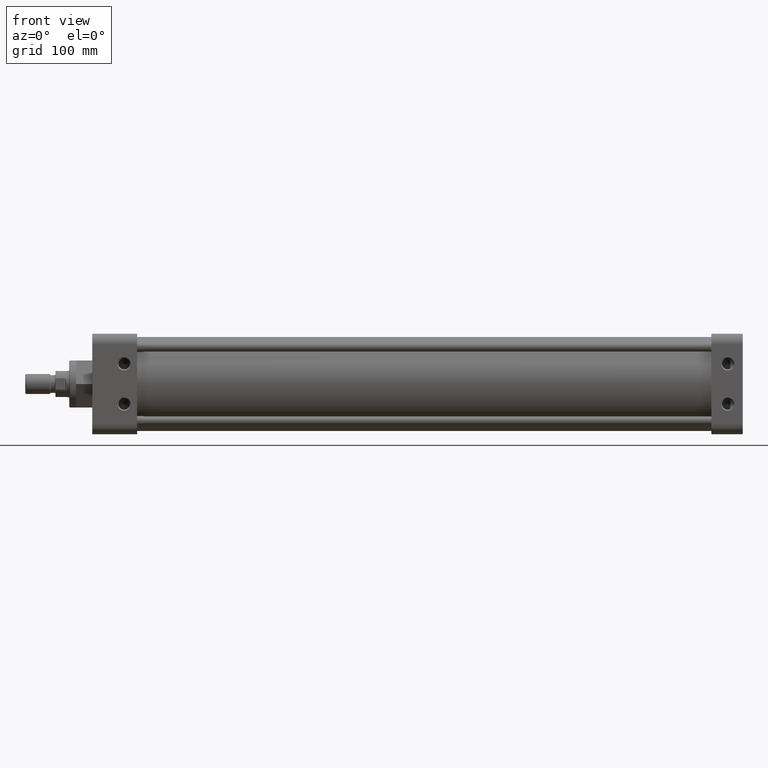
[diagram: clean part render]
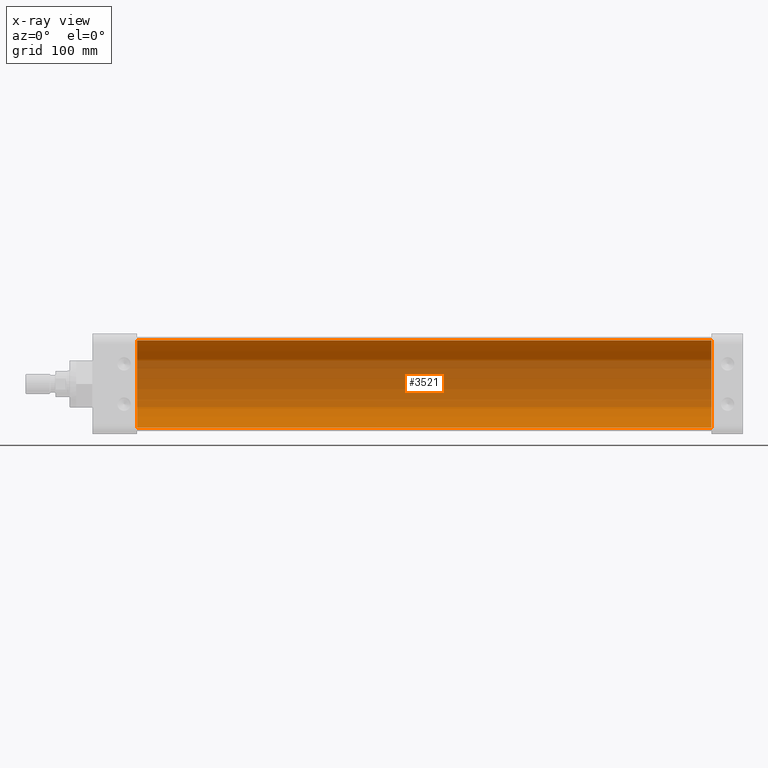
[diagram: x-ray — body ghosted, one internal face saturated and labeled with its STEP entity id]
A machine part, front view, then the same camera in x-ray: the body is ghosted and one INTERNAL B-rep face — a face not visible from any outside direction — is saturated and labeled: STEP entity #3521.
In plain terms, the highlighted cylindrical surface (partial cylindrical patch) has radius 41.275 mm, axis along (1, 0, 0).
Its self-contained STEP definition (entity closure, byte-faithful):
#334 = DIRECTION ( 'NONE',  ( 0.0000000000000000000, 0.0000000000000000000, -1.000000000000000000 ) ) ;
#731 = ORIENTED_EDGE ( 'NONE', *, *, #12749, .T. ) ;
#938 = DIRECTION ( 'NONE',  ( 0.0000000000000000000, 0.0000000000000000000, -1.000000000000000000 ) ) ;
#948 = CIRCLE ( 'NONE', #5134, 1.625000000000000000 ) ;
#1687 = CARTESIAN_POINT ( 'NONE',  ( 23.07599999999999700, 0.0000000000000000000, -1.625000000000000000 ) ) ;
#2586 = CARTESIAN_POINT ( 'NONE',  ( 23.07599999999999700, 1.990051048614449100E-016, 1.625000000000000000 ) ) ;
#2844 = ORIENTED_EDGE ( 'NONE', *, *, #3183, .F. ) ;
#3183 = EDGE_CURVE ( 'NONE', #13154, #10562, #948, .T. ) ;
#3205 = EDGE_CURVE ( 'NONE', #12258, #6724, #12630, .T. ) ;
#3521 = ADVANCED_FACE ( 'NONE', ( #10649 ), #9228, .F. ) ;
#4294 = AXIS2_PLACEMENT_3D ( 'NONE', #6452, #7675, #938 ) ;
#5134 = AXIS2_PLACEMENT_3D ( 'NONE', #5828, #13778, #6964 ) ;
#5828 = CARTESIAN_POINT ( 'NONE',  ( 23.07599999999999700, 0.0000000000000000000, 0.0000000000000000000 ) ) ;
#6337 = CARTESIAN_POINT ( 'NONE',  ( 1.669999999999999900, 1.990051048614449100E-016, 1.625000000000000000 ) ) ;
#6452 = CARTESIAN_POINT ( 'NONE',  ( 23.07599999999999700, 0.0000000000000000000, 0.0000000000000000000 ) ) ;
#6713 = CARTESIAN_POINT ( 'NONE',  ( 1.669999999999999900, 0.0000000000000000000, -1.625000000000000000 ) ) ;
#6724 = VERTEX_POINT ( 'NONE', #6713 ) ;
#6964 = DIRECTION ( 'NONE',  ( 0.0000000000000000000, 0.0000000000000000000, -1.000000000000000000 ) ) ;
#7112 = DIRECTION ( 'NONE',  ( -1.000000000000000000, 0.0000000000000000000, 0.0000000000000000000 ) ) ;
#7232 = CARTESIAN_POINT ( 'NONE',  ( 23.07599999999999700, 0.0000000000000000000, -1.625000000000000000 ) ) ;
#7581 = LINE ( 'NONE', #2586, #10209 ) ;
#7671 = VECTOR ( 'NONE', #14036, 39.37007874015748100 ) ;
#7675 = DIRECTION ( 'NONE',  ( 1.000000000000000000, -0.0000000000000000000, -0.0000000000000000000 ) ) ;
#9190 = CARTESIAN_POINT ( 'NONE',  ( 23.07599999999999700, 1.990051048614449100E-016, 1.625000000000000000 ) ) ;
#9228 = CYLINDRICAL_SURFACE ( 'NONE', #4294, 1.625000000000000000 ) ;
#9377 = ORIENTED_EDGE ( 'NONE', *, *, #11276, .F. ) ;
#10209 = VECTOR ( 'NONE', #10515, 39.37007874015748100 ) ;
#10440 = AXIS2_PLACEMENT_3D ( 'NONE', #13926, #7112, #334 ) ;
#10515 = DIRECTION ( 'NONE',  ( 1.000000000000000000, -0.0000000000000000000, -0.0000000000000000000 ) ) ;
#10562 = VERTEX_POINT ( 'NONE', #1687 ) ;
#10649 = FACE_OUTER_BOUND ( 'NONE', #12955, .T. ) ;
#10660 = LINE ( 'NONE', #7232, #7671 ) ;
#11276 = EDGE_CURVE ( 'NONE', #12258, #13154, #7581, .T. ) ;
#12258 = VERTEX_POINT ( 'NONE', #6337 ) ;
#12630 = CIRCLE ( 'NONE', #10440, 1.625000000000000000 ) ;
#12749 = EDGE_CURVE ( 'NONE', #6724, #10562, #10660, .T. ) ;
#12955 = EDGE_LOOP ( 'NONE', ( #9377, #14247, #731, #2844 ) ) ;
#13154 = VERTEX_POINT ( 'NONE', #9190 ) ;
#13778 = DIRECTION ( 'NONE',  ( -1.000000000000000000, 0.0000000000000000000, 0.0000000000000000000 ) ) ;
#13926 = CARTESIAN_POINT ( 'NONE',  ( 1.669999999999999900, 0.0000000000000000000, 0.0000000000000000000 ) ) ;
#14036 = DIRECTION ( 'NONE',  ( 1.000000000000000000, -0.0000000000000000000, -0.0000000000000000000 ) ) ;
#14247 = ORIENTED_EDGE ( 'NONE', *, *, #3205, .T. ) ;